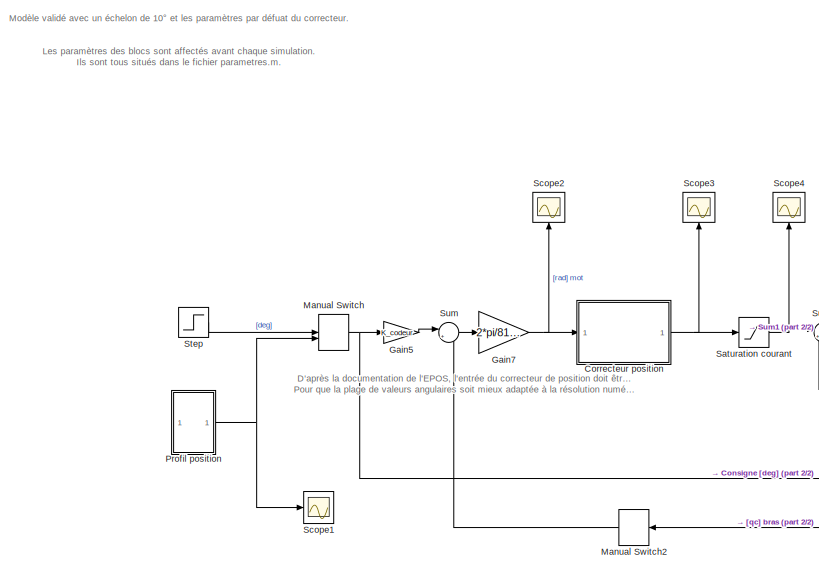
[diagram: root canvas - part 1/2, left side, full height]
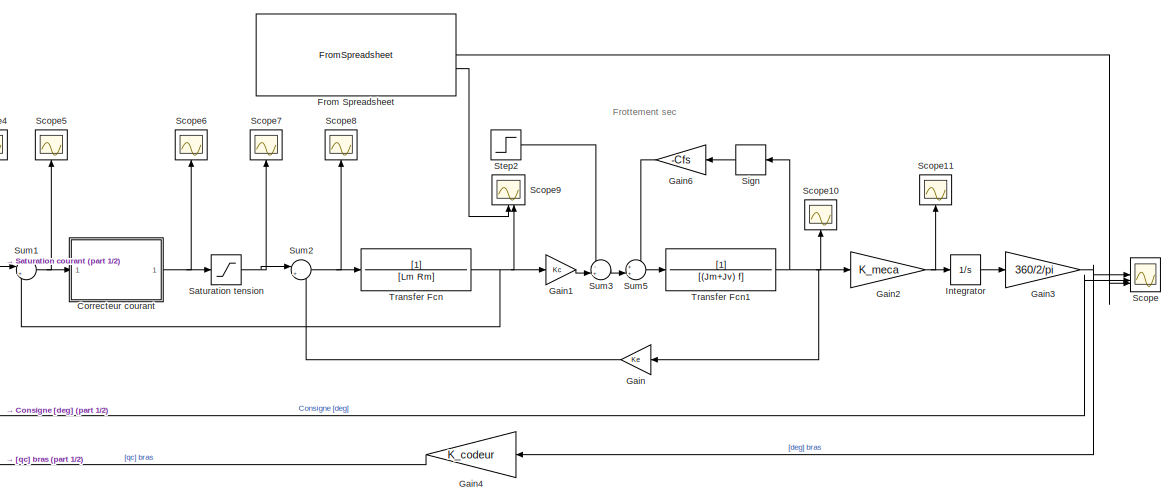
[diagram: root canvas - part 2/2, right side, full height]
MODEL slx_2cd97a3a15cf
KIND model
CONFIG AbsTol = auto
CONFIG EnableMultiTasking = off
CONFIG FixedStep = auto
CONFIG InitFcn = run('parametres.m')
CONFIG MaxStep = auto
CONFIG MinStep = auto
CONFIG RelTol = 1e-3
CONFIG SampleTimeConstraint = Unconstrained
CONFIG SolverName = VariableStepAuto
CONFIG StartTime = 0.0
CONFIG StopTime = 1
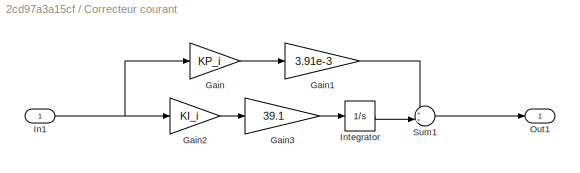
BLOCK [SubSystem] Correcteur courant
BLOCK [Gain] Correcteur courant/Gain
  Gain = KP_i
BLOCK [Gain] Correcteur courant/Gain1
  Gain = 3.91e-3
BLOCK [Gain] Correcteur courant/Gain2
  Gain = KI_i
BLOCK [Gain] Correcteur courant/Gain3
  Gain = 39.1
BLOCK [Inport] Correcteur courant/In1
BLOCK [Integrator] Correcteur courant/Integrator
BLOCK [Outport] Correcteur courant/Out1
BLOCK [Sum] Correcteur courant/Sum1
  Inputs = ++|
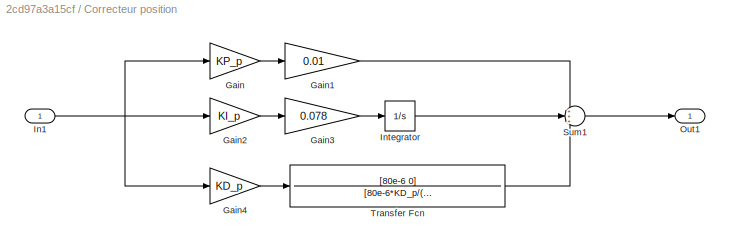
BLOCK [SubSystem] Correcteur position
BLOCK [Gain] Correcteur position/Gain
  Gain = KP_p
BLOCK [Gain] Correcteur position/Gain1
  Gain = 0.01
BLOCK [Gain] Correcteur position/Gain2
  Gain = KI_p
BLOCK [Gain] Correcteur position/Gain3
  Gain = 0.078
BLOCK [Gain] Correcteur position/Gain4
  Gain = KD_p
BLOCK [Inport] Correcteur position/In1
BLOCK [Integrator] Correcteur position/Integrator
BLOCK [Outport] Correcteur position/Out1
BLOCK [Sum] Correcteur position/Sum1
  Inputs = +++
BLOCK [TransferFcn] Correcteur position/Transfer Fcn
  Denominator = [80e-6*KD_p/(16*0.01*KP_p) 1]
  Numerator = [80e-6 0]
BLOCK [FromSpreadsheet] From Spreadsheet
  FileName = <path>
  Range = A2:C103
  SheetName = Echelon_10deg_I_H
BLOCK [Gain] Gain
  Gain = Ke
  NameLocation = top
BLOCK [Gain] Gain1
  Gain = Kc
BLOCK [Gain] Gain2
  Gain = K_meca
BLOCK [Gain] Gain3
  Gain = 360/2/pi
BLOCK [Gain] Gain4
  Gain = K_codeur
  NameLocation = top
BLOCK [Gain] Gain5
  Gain = K_codeur
BLOCK [Gain] Gain6
  Gain = -Cfs
  NameLocation = top
BLOCK [Gain] Gain7
  Gain = 2*pi/8192/K_meca
BLOCK [Integrator] Integrator
BLOCK [ManualSwitch] Manual Switch
BLOCK [ManualSwitch] Manual Switch2
  NameLocation = top
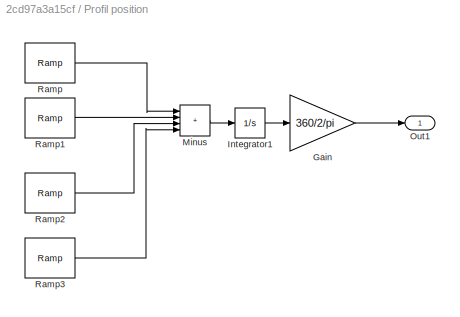
BLOCK [SubSystem] Profil position
BLOCK [Gain] Profil position/Gain
  Gain = 360/2/pi
BLOCK [Integrator] Profil position/Integrator1
BLOCK [Sum] Profil position/Minus
  IconShape = rectangular
  Inputs = ++++
BLOCK [Outport] Profil position/Out1
BLOCK [Reference] Profil position/Ramp  REF=simulink/Sources/Ramp
  SourceBlock = simulink/Sources/Ramp
  SourceType = Ramp
BLOCK [Reference] Profil position/Ramp1  REF=simulink/Sources/Ramp
  SourceBlock = simulink/Sources/Ramp
  SourceType = Ramp
BLOCK [Reference] Profil position/Ramp2  REF=simulink/Sources/Ramp
  SourceBlock = simulink/Sources/Ramp
  SourceType = Ramp
BLOCK [Reference] Profil position/Ramp3  REF=simulink/Sources/Ramp
  SourceBlock = simulink/Sources/Ramp
  SourceType = Ramp
BLOCK [Saturate] Saturation courant
  LowerLimit = -Imax
  UpperLimit = Imax
BLOCK [Saturate] Saturation tension
  LowerLimit = -Umax
  UpperLimit = Umax
BLOCK [Scope] Scope
  Floating = off
  NumInputPorts = 3
  ScopeSpecificationString = Simulink.scopes.TimeScopeBlockCfg('CurrentConfiguration', extmgr.ConfigurationSet(extmgr.Configuration('Core','General UI',true),extmgr.Configuration('Core','Source UI',true),extmgr.Configuration('Sources','WiredSimulink',true),extmgr.Configuration('Visuals','Time Domain',true,'SerializedDisplays',{struct('MinYLimReal','-1.59851','MaxYLimReal','14.3866','YLabelReal','','MinYLimMag','0.00000','MaxY...<+1521ch>
BLOCK [Scope] Scope1
  Floating = off
  NumInputPorts = 1
  ScopeSpecificationString = Simulink.scopes.TimeScopeBlockCfg('CurrentConfiguration', extmgr.ConfigurationSet(extmgr.Configuration('Core','General UI',true),extmgr.Configuration('Core','Source UI',true),extmgr.Configuration('Sources','WiredSimulink',true,'DataLoggingVariableName','ScopeData1'),extmgr.Configuration('Visuals','Time Domain',true,'SerializedDisplays',{struct('MinYLimReal','-11.25','MaxYLimReal','101.25','YLabelR...<+1408ch>
BLOCK [Scope] Scope10
  Floating = off
  NameLocation = right
  NumInputPorts = 1
  ScopeSpecificationString = Simulink.scopes.TimeScopeBlockCfg('CurrentConfiguration', extmgr.ConfigurationSet(extmgr.Configuration('Core','General UI',true),extmgr.Configuration('Core','Source UI',true),extmgr.Configuration('Sources','WiredSimulink',true,'DataLoggingVariableName','ScopeData10'),extmgr.Configuration('Visuals','Time Domain',true,'SerializedDisplays',{struct('MinYLimReal','-840.94694','MaxYLimReal','3885.88406'...<+1522ch>
BLOCK [Scope] Scope11
  Floating = off
  NameLocation = right
  NumInputPorts = 1
  ScopeSpecificationString = Simulink.scopes.TimeScopeBlockCfg('CurrentConfiguration', extmgr.ConfigurationSet(extmgr.Configuration('Core','General UI',true),extmgr.Configuration('Core','Source UI',true),extmgr.Configuration('Sources','WiredSimulink',true,'DataLoggingVariableName','ScopeData11'),extmgr.Configuration('Visuals','Time Domain',true,'SerializedDisplays',{struct('MinYLimReal','-0.00183','MaxYLimReal','0.01646','YLa...<+1407ch>
BLOCK [Scope] Scope2
  Floating = off
  NameLocation = right
  NumInputPorts = 1
  ScopeSpecificationString = Simulink.scopes.TimeScopeBlockCfg('CurrentConfiguration', extmgr.ConfigurationSet(extmgr.Configuration('Core','General UI',true),extmgr.Configuration('Core','Source UI',true),extmgr.Configuration('Sources','WiredSimulink',true,'DataLoggingVariableName','ScopeData2'),extmgr.Configuration('Visuals','Time Domain',true,'SerializedDisplays',{struct('MinYLimReal','-0.52962','MaxYLimReal','0.25277','YLab...<+1495ch>
BLOCK [Scope] Scope3
  Floating = off
  NameLocation = right
  NumInputPorts = 1
  ScopeSpecificationString = Simulink.scopes.TimeScopeBlockCfg('CurrentConfiguration', extmgr.ConfigurationSet(extmgr.Configuration('Core','General UI',true),extmgr.Configuration('Core','Source UI',true),extmgr.Configuration('Sources','WiredSimulink',true,'DataLoggingVariableName','ScopeData3'),extmgr.Configuration('Visuals','Time Domain',true,'SerializedDisplays',{struct('MinYLimReal','-64.54465','MaxYLimReal','191.78868','Y...<+1544ch>
BLOCK [Scope] Scope4
  Floating = off
  NameLocation = right
  NumInputPorts = 1
  ScopeSpecificationString = Simulink.scopes.TimeScopeBlockCfg('CurrentConfiguration', extmgr.ConfigurationSet(extmgr.Configuration('Core','General UI',true),extmgr.Configuration('Core','Source UI',true),extmgr.Configuration('Sources','WiredSimulink',true,'DataLoggingVariableName','ScopeData4'),extmgr.Configuration('Visuals','Time Domain',true,'SerializedDisplays',{struct('MinYLimReal','-5.13068','MaxYLimReal','4.46614','YLab...<+1527ch>
BLOCK [Scope] Scope5
  Floating = off
  NameLocation = right
  NumInputPorts = 1
  ScopeSpecificationString = Simulink.scopes.TimeScopeBlockCfg('CurrentConfiguration', extmgr.ConfigurationSet(extmgr.Configuration('Core','General UI',true),extmgr.Configuration('Core','Source UI',true),extmgr.Configuration('Sources','WiredSimulink',true,'DataLoggingVariableName','ScopeData5'),extmgr.Configuration('Visuals','Time Domain',true,'SerializedDisplays',{struct('MinYLimReal','-32.85239','MaxYLimReal','124.66858','Y...<+1504ch>
BLOCK [Scope] Scope6
  Floating = off
  NameLocation = right
  NumInputPorts = 1
  ScopeSpecificationString = Simulink.scopes.TimeScopeBlockCfg('CurrentConfiguration', extmgr.ConfigurationSet(extmgr.Configuration('Core','General UI',true),extmgr.Configuration('Core','Source UI',true),extmgr.Configuration('Sources','WiredSimulink',true,'DataLoggingVariableName','ScopeData6'),extmgr.Configuration('Visuals','Time Domain',true,'SerializedDisplays',{struct('MinYLimReal','-543.15145','MaxYLimReal','4806.71325',...<+1551ch>
BLOCK [Scope] Scope7
  Floating = off
  NameLocation = right
  NumInputPorts = 1
  ScopeSpecificationString = Simulink.scopes.TimeScopeBlockCfg('CurrentConfiguration', extmgr.ConfigurationSet(extmgr.Configuration('Core','General UI',true),extmgr.Configuration('Core','Source UI',true),extmgr.Configuration('Sources','WiredSimulink',true,'DataLoggingVariableName','ScopeData7'),extmgr.Configuration('Visuals','Time Domain',true,'SerializedDisplays',{struct('MinYLimReal','-12.18561','MaxYLimReal','28.02062','YL...<+1514ch>
BLOCK [Scope] Scope8
  Floating = off
  NameLocation = right
  NumInputPorts = 1
  ScopeSpecificationString = Simulink.scopes.TimeScopeBlockCfg('CurrentConfiguration', extmgr.ConfigurationSet(extmgr.Configuration('Core','General UI',true),extmgr.Configuration('Core','Source UI',true),extmgr.Configuration('Sources','WiredSimulink',true,'DataLoggingVariableName','ScopeData8'),extmgr.Configuration('Visuals','Time Domain',true,'SerializedDisplays',{struct('MinYLimReal','-6.05717','MaxYLimReal','15.61791','YLa...<+1409ch>
BLOCK [Scope] Scope9
  Floating = off
  NameLocation = right
  NumInputPorts = 2
  ScopeSpecificationString = Simulink.scopes.TimeScopeBlockCfg('CurrentConfiguration', extmgr.ConfigurationSet(extmgr.Configuration('Core','General UI',true),extmgr.Configuration('Core','Source UI',true),extmgr.Configuration('Sources','WiredSimulink',true,'DataLoggingVariableName','ScopeData9'),extmgr.Configuration('Visuals','Time Domain',true,'SerializedDisplays',{struct('MinYLimReal','-4.66371','MaxYLimReal','4.55929','YLab...<+1548ch>
BLOCK [Signum] Sign
  NameLocation = top
  ZeroCross = off
BLOCK [Step] Step
  After = 60
  SampleTime = 0
  Time = 0
BLOCK [Step] Step2
  After = 0
  SampleTime = 0
BLOCK [Sum] Sum
  Inputs = |+-
BLOCK [Sum] Sum1
  Inputs = |+-
BLOCK [Sum] Sum2
  Inputs = |+-
BLOCK [Sum] Sum3
  Inputs = -+|
BLOCK [Sum] Sum5
  Inputs = ++|
BLOCK [TransferFcn] Transfer Fcn
  Denominator = [Lm Rm]
BLOCK [TransferFcn] Transfer Fcn1
  Denominator = [(Jm+Jv) f]
ANNOTATION (root): D'après la documentation de l'EPOS, l'entrée du correcteur de position doit être en radians. Pour que la plage de valeurs angulaires soit mieux adaptée à la résolution numérique de la carte EPOS, il a été choisi par DIDASTEL de convertir l'angle bras en angle moteur, ce qui explique l'apparition du gain K_meca.
ANNOTATION (root): Frottement sec
ANNOTATION (root): Modèle validé avec un échelon de 10° et les paramètres par défuat du correcteur. Les paramètres des blocs sont affectés avant chaque simulation. Ils sont tous situés dans le fichier parametres.m. Pour cela, voir dans Model Properties, Init Fcn.
LINE Correcteur courant/Gain1:1 -> Correcteur courant/Sum1:1
LINE Correcteur courant/Gain2:1 -> Correcteur courant/Gain3:1
LINE Correcteur courant/Gain3:1 -> Correcteur courant/Integrator:1
LINE Correcteur courant/Gain:1 -> Correcteur courant/Gain1:1
NET Correcteur courant/In1:1 -> Correcteur courant/Gain2:1, Correcteur courant/Gain:1
LINE Correcteur courant/Integrator:1 -> Correcteur courant/Sum1:2
LINE Correcteur courant/Sum1:1 -> Correcteur courant/Out1:1
NET Correcteur courant:1 -> Saturation tension:1, Scope6:1
LINE Correcteur position/Gain1:1 -> Correcteur position/Sum1:1
LINE Correcteur position/Gain2:1 -> Correcteur position/Gain3:1
LINE Correcteur position/Gain3:1 -> Correcteur position/Integrator:1
LINE Correcteur position/Gain4:1 -> Correcteur position/Transfer Fcn:1
LINE Correcteur position/Gain:1 -> Correcteur position/Gain1:1
NET Correcteur position/In1:1 -> Correcteur position/Gain2:1, Correcteur position/Gain4:1, Correcteur position/Gain:1
LINE Correcteur position/Integrator:1 -> Correcteur position/Sum1:2
LINE Correcteur position/Sum1:1 -> Correcteur position/Out1:1
LINE Correcteur position/Transfer Fcn:1 -> Correcteur position/Sum1:3
NET Correcteur position:1 -> Saturation courant:1, Scope3:1
LINE From Spreadsheet:1 -> Scope:3
LINE From Spreadsheet:2 -> Scope9:1
LINE Gain1:1 -> Sum3:2
NET Gain2:1 -> Integrator:1, Scope11:1
NET Gain3:1 -> Gain4:1, Scope:1
LINE Gain4:1 -> Manual Switch2:1
LINE Gain5:1 -> Sum:1
LINE Gain6:1 -> Sum5:1
NET Gain7:1 -> Correcteur position:1, Scope2:1
LINE Gain:1 -> Sum2:2
LINE Integrator:1 -> Gain3:1
LINE Manual Switch2:1 -> Sum:2
NET Manual Switch:1 -> Gain5:1, Scope:2
LINE Profil position/Gain:1 -> Profil position/Out1:1
LINE Profil position/Integrator1:1 -> Profil position/Gain:1
LINE Profil position/Minus:1 -> Profil position/Integrator1:1
LINE Profil position/Ramp1:1 -> Profil position/Minus:2
LINE Profil position/Ramp2:1 -> Profil position/Minus:3
LINE Profil position/Ramp3:1 -> Profil position/Minus:4
LINE Profil position/Ramp:1 -> Profil position/Minus:1
NET Profil position:1 -> Manual Switch:2, Scope1:1
NET Saturation courant:1 -> Scope4:1, Sum1:1
NET Saturation tension:1 -> Scope7:1, Sum2:1
LINE Sign:1 -> Gain6:1
LINE Step2:1 -> Sum3:1
LINE Step:1 -> Manual Switch:1
NET Sum1:1 -> Correcteur courant:1, Scope5:1
NET Sum2:1 -> Scope8:1, Transfer Fcn:1
LINE Sum3:1 -> Sum5:2
LINE Sum5:1 -> Transfer Fcn1:1
LINE Sum:1 -> Gain7:1
NET Transfer Fcn1:1 -> Gain2:1, Gain:1, Scope10:1, Sign:1
NET Transfer Fcn:1 -> Gain1:1, Scope9:2, Sum1:2
note: NET lines group one-source signal fan-out (src -> all destinations, sorted); 1:1 wires keep LINE
note: 1 file-system path scrubbed to <path> (not preserved elsewhere — flat text is the only slx artifact)
